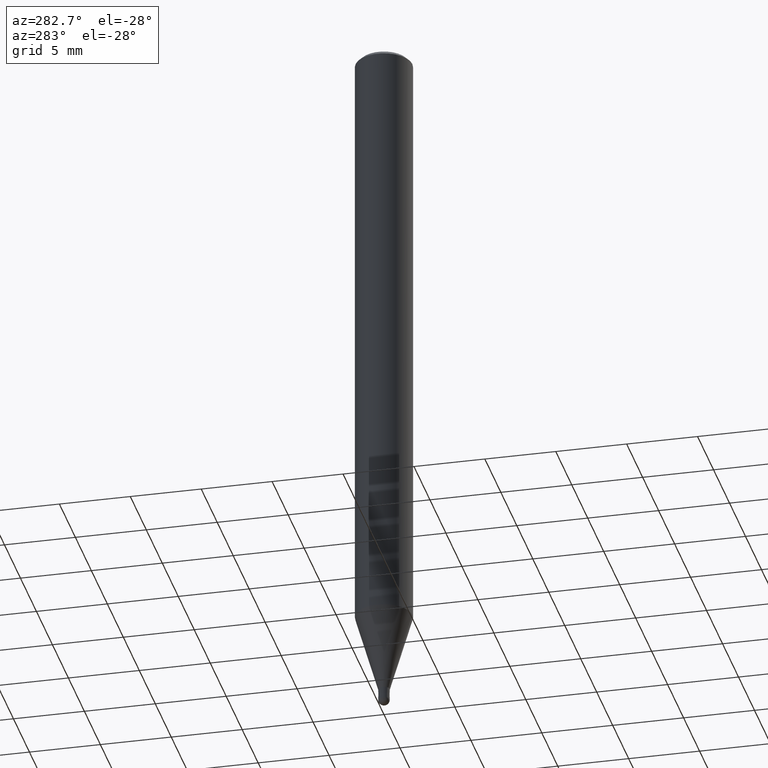
[diagram: clean part render]
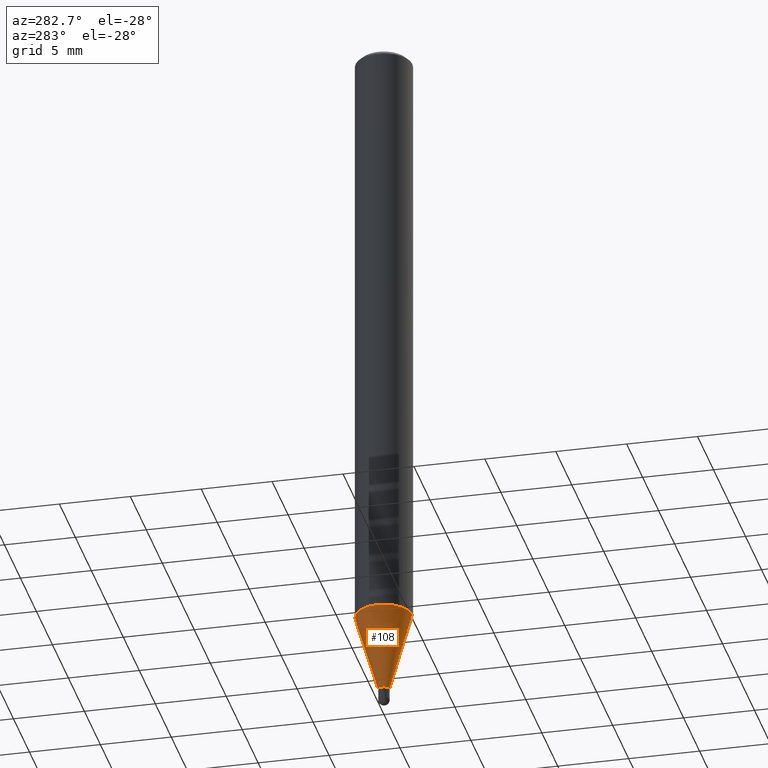
[diagram: same view with one face highlighted and labeled with its STEP entity id]
A machine part, auxiliary view. The second image highlights one B-rep face of the part: STEP entity #108.
In plain terms, the highlighted conical surface has half-angle 16 deg.
Its self-contained STEP definition (entity closure, byte-faithful):
#100=EDGE_CURVE('',#182,#184,#228,.T.);
#108=ADVANCED_FACE('',(#238),#239,.T.);
#112=EDGE_CURVE('',#182,#174,#244,.T.);
#142=EDGE_CURVE('',#174,#186,#278,.T.);
#144=EDGE_CURVE('',#186,#184,#280,.T.);
#174=VERTEX_POINT('',#314);
#182=VERTEX_POINT('',#322);
#184=VERTEX_POINT('',#324);
#186=VERTEX_POINT('',#326);
#228=CIRCLE('',#362,0.39995);
#238=FACE_OUTER_BOUND('',#373,.T.);
#239=CONICAL_SURFACE('',#374,1.19995,0.279246180255812);
#244=LINE('',#380,#381);
#278=CIRCLE('',#422,1.99995);
#280=LINE('',#425,#426);
#314=CARTESIAN_POINT('',(2.44915147732706E-016,-1.99995,-43.22));
#322=CARTESIAN_POINT('',(4.8978131121126E-017,-0.39995,-48.8));
#324=CARTESIAN_POINT('',(0.0,0.39995,-48.8));
#326=CARTESIAN_POINT('',(0.0,1.99995,-43.22));
#362=AXIS2_PLACEMENT_3D('',#520,#521,#522);
#373=EDGE_LOOP('',(#541,#542,#543,#544));
#374=AXIS2_PLACEMENT_3D('',#545,#546,#547);
#380=CARTESIAN_POINT('',(1.46946639426916E-016,-1.19995,-46.01));
#381=VECTOR('',#554,1.0);
#422=AXIS2_PLACEMENT_3D('',#602,#603,#604);
#425=CARTESIAN_POINT('',(-1.46946639426916E-016,1.19995,-46.01));
#426=VECTOR('',#605,1.0);
#520=CARTESIAN_POINT('',(0.0,0.0,-48.8));
#521=DIRECTION('',(0.0,0.0,-1.0));
#522=DIRECTION('',(0.0,1.0,0.0));
#541=ORIENTED_EDGE('',*,*,#144,.T.);
#542=ORIENTED_EDGE('',*,*,#100,.F.);
#543=ORIENTED_EDGE('',*,*,#112,.T.);
#544=ORIENTED_EDGE('',*,*,#142,.T.);
#545=CARTESIAN_POINT('',(0.0,0.0,-46.01));
#546=DIRECTION('',(-0.0,-0.0,1.0));
#547=DIRECTION('',(0.0,1.0,0.0));
#554=DIRECTION('',(3.37539605616001E-017,-0.275631107549324,0.961263487578267));
#602=CARTESIAN_POINT('',(0.0,0.0,-43.22));
#603=DIRECTION('',(0.0,0.0,-1.0));
#604=DIRECTION('',(0.0,1.0,0.0));
#605=DIRECTION('',(3.37539605616001E-017,-0.275631107549324,-0.961263487578267));